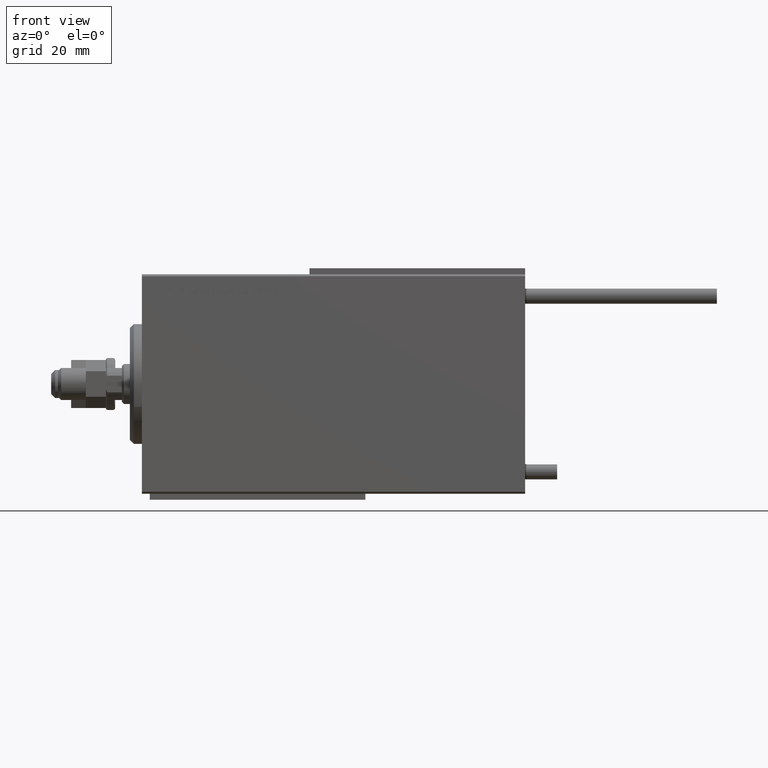
[diagram: clean part render]
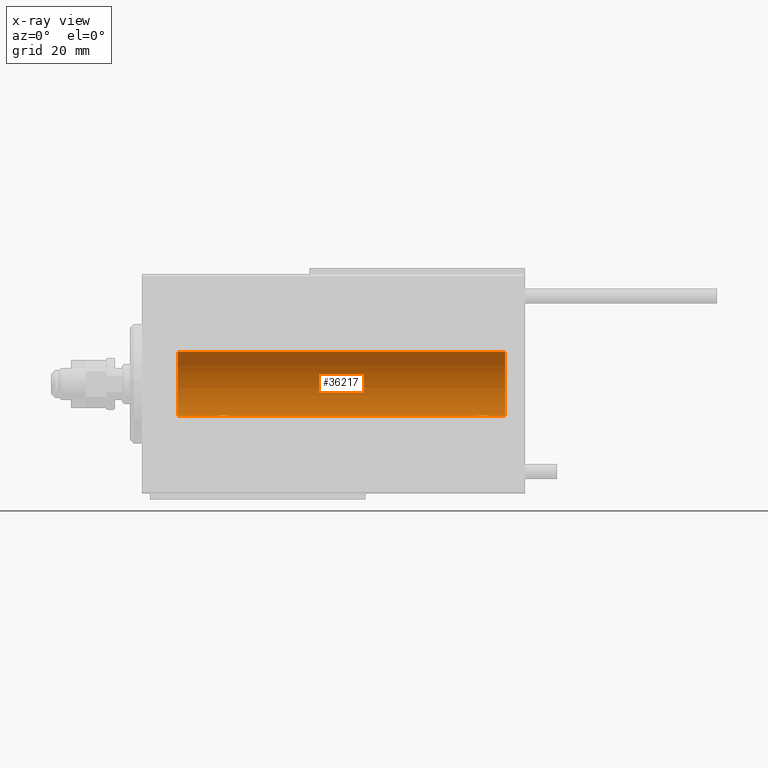
[diagram: x-ray — body ghosted, one internal face saturated and labeled with its STEP entity id]
A machine part, front view, then the same camera in x-ray: the body is ghosted and one INTERNAL B-rep face — a face not visible from any outside direction — is saturated and labeled: STEP entity #36217.
In plain terms, the highlighted cylindrical surface (edge-blend (fillet) strip) has radius 8 mm, axis along (-1, -0, -0).
Its self-contained STEP definition (entity closure, byte-faithful):
#160 = CARTESIAN_POINT ( 'NONE',  ( 84.25000000000001421, -1.007472265424530393E-14, -7.999999999999998224 ) ) ;
#597 = ORIENTED_EDGE ( 'NONE', *, *, #43658, .F. ) ;
#3413 = CARTESIAN_POINT ( 'NONE',  ( 85.90257413385910468, 1.186236229830381239, -7.911627449023369785 ) ) ;
#3460 = CARTESIAN_POINT ( 'NONE',  ( 21.59204967621043991, 0.6298709050361920303, -7.976604806854521001 ) ) ;
#4107 = DIRECTION ( 'NONE',  ( 0.000000000000000000, 0.000000000000000000, 1.000000000000000000 ) ) ;
#4166 = CARTESIAN_POINT ( 'NONE',  ( 84.40826977845306089, 0.6304521543648567983, -7.976560245937302618 ) ) ;
#5078 = DIRECTION ( 'NONE',  ( -1.000000000000000000, -0.000000000000000000, -0.000000000000000000 ) ) ;
#5446 = CARTESIAN_POINT ( 'NONE',  ( 86.75000000000002842, 9.797173987969553159E-16, -7.999999999999998224 ) ) ;
#6833 = EDGE_CURVE ( 'NONE', #23803, #44172, #23744, .T. ) ;
#7525 = CARTESIAN_POINT ( 'NONE',  ( 85.58119849493557751, 1.250030652953397992, -7.901735465557269578 ) ) ;
#8340 = VECTOR ( 'NONE', #48915, 1000.000000000000000 ) ;
#8493 = ORIENTED_EDGE ( 'NONE', *, *, #48108, .T. ) ;
#8539 = CARTESIAN_POINT ( 'NONE',  ( 86.70976650520090345, 0.3250523954932707515, -7.993796610540219838 ) ) ;
#9121 = VERTEX_POINT ( 'NONE', #19791 ) ;
#9866 = CYLINDRICAL_SURFACE ( 'NONE', #28202, 7.999999999999998224 ) ;
#10468 = VERTEX_POINT ( 'NONE', #10490 ) ;
#10490 = CARTESIAN_POINT ( 'NONE',  ( 91.00000000000000000, 9.797174393178823685E-16, -7.999999999999998224 ) ) ;
#10883 = CARTESIAN_POINT ( 'NONE',  ( 91.00000000000000000, 0.000000000000000000, 0.000000000000000000 ) ) ;
#11200 = CARTESIAN_POINT ( 'NONE',  ( 20.17150130922778573, 1.217000984963200860, -7.907141142849008375 ) ) ;
#11395 = CARTESIAN_POINT ( 'NONE',  ( 85.33619145091236646, 1.249938428426567549, -7.901750054830718462 ) ) ;
#11438 = AXIS2_PLACEMENT_3D ( 'NONE', #19489, #31090, #15158 ) ;
#11440 = CARTESIAN_POINT ( 'NONE',  ( 20.90257413385907270, 1.186236229830388345, -7.911627449023368008 ) ) ;
#11585 = CARTESIAN_POINT ( 'NONE',  ( 9.000000000000007105, 0.000000000000000000, 0.000000000000000000 ) ) ;
#11810 = LINE ( 'NONE', #23114, #14213 ) ;
#12896 = CARTESIAN_POINT ( 'NONE',  ( 9.000000000000007105, 9.797174393178823685E-16, -7.999999999999998224 ) ) ;
#13494 = VERTEX_POINT ( 'NONE', #12896 ) ;
#13660 = EDGE_CURVE ( 'NONE', #26595, #9121, #11810, .T. ) ;
#13779 = LINE ( 'NONE', #17621, #46414 ) ;
#13981 = DIRECTION ( 'NONE',  ( -1.000000000000000000, -0.000000000000000000, -0.000000000000000000 ) ) ;
#14213 = VECTOR ( 'NONE', #15170, 1000.000000000000000 ) ;
#14560 = CARTESIAN_POINT ( 'NONE',  ( 21.70976650520091411, 0.3250523954932730830, -7.993796610540221614 ) ) ;
#14806 = CARTESIAN_POINT ( 'NONE',  ( 21.75000000000000355, 9.797173987965608855E-16, -7.999999999999998224 ) ) ;
#15012 = CARTESIAN_POINT ( 'NONE',  ( 85.66417091690313157, 1.241868426634436862, -7.903038949453011774 ) ) ;
#15056 = CARTESIAN_POINT ( 'NONE',  ( 19.25000000000000711, -6.253246997522681077E-15, -7.999999999999998224 ) ) ;
#15158 = DIRECTION ( 'NONE',  ( 0.000000000000000000, 0.000000000000000000, 1.000000000000000000 ) ) ;
#15168 = CIRCLE ( 'NONE', #31016, 7.999999999999998224 ) ;
#15170 = DIRECTION ( 'NONE',  ( -1.000000000000000000, -0.000000000000000000, -0.000000000000000000 ) ) ;
#15262 = CARTESIAN_POINT ( 'NONE',  ( 86.26739091610632215, 1.000368629246204177, -7.938072339095200824 ) ) ;
#15304 = CARTESIAN_POINT ( 'NONE',  ( 21.74181525892405986, 0.1645871186493928773, -7.998709545350109806 ) ) ;
#15328 = VERTEX_POINT ( 'NONE', #38969 ) ;
#15893 = CARTESIAN_POINT ( 'NONE',  ( 91.00000000000000000, 9.797174393178823685E-16, -7.999999999999998224 ) ) ;
#16008 = CARTESIAN_POINT ( 'NONE',  ( 84.73146701955097626, 0.9991832710565793363, -7.938201675418737224 ) ) ;
#16104 = ORIENTED_EDGE ( 'NONE', *, *, #13660, .T. ) ;
#17621 = CARTESIAN_POINT ( 'NONE',  ( 91.00000000000000000, 9.797174393178823685E-16, -7.999999999999998224 ) ) ;
#17826 = FACE_OUTER_BOUND ( 'NONE', #36498, .T. ) ;
#18391 = CARTESIAN_POINT ( 'NONE',  ( 20.33619145091235936, 1.249938428426572656, -7.901750054830717573 ) ) ;
#18642 = CARTESIAN_POINT ( 'NONE',  ( 19.73146701955095494, 0.9991832710565806686, -7.938201675418735448 ) ) ;
#19489 = CARTESIAN_POINT ( 'NONE',  ( 91.00000000000000000, 0.000000000000000000, 0.000000000000000000 ) ) ;
#19791 = CARTESIAN_POINT ( 'NONE',  ( 9.000000000000007105, 0.000000000000000000, 7.999999999999998224 ) ) ;
#20044 = ORIENTED_EDGE ( 'NONE', *, *, #23582, .F. ) ;
#21003 = B_SPLINE_CURVE_WITH_KNOTS ( 'NONE', 3,
 ( #15056, #30739, #38209, #23253, #50758, #18642, #34340, #11200, #18391, #50004, #46663, #42560, #11440, #26619, #50506, #34099, #3460, #34849, #14560, #15304, #30997, #14806 ),
 .UNSPECIFIED., .F., .F.,
 ( 4, 2, 2, 2, 2, 2, 2, 2, 2, 2, 4 ),
 ( 4.384776375612755932E-19, 0.0004892585179631271522, 0.0009785170359262538708, 0.001467775553889380698, 0.001957034071852507308, 0.002201663330834065842, 0.002446292589815623510, 0.002935551107778730170, 0.003424809625741835964, 0.003669438884723391463, 0.003914068143704946962 ),
 .UNSPECIFIED. ) ;
#21320 = CARTESIAN_POINT ( 'NONE',  ( 86.75000000000002842, 9.797173987969553159E-16, -7.999999999999998224 ) ) ;
#23114 = CARTESIAN_POINT ( 'NONE',  ( 91.00000000000000000, 0.000000000000000000, 7.999999999999998224 ) ) ;
#23207 = CARTESIAN_POINT ( 'NONE',  ( 86.59204967621045057, 0.6298709050361919193, -7.976604806854521001 ) ) ;
#23253 = CARTESIAN_POINT ( 'NONE',  ( 19.40826977845302537, 0.6304521543648575754, -7.976560245937306171 ) ) ;
#23582 = EDGE_CURVE ( 'NONE', #26595, #10468, #31142, .T. ) ;
#23631 = CARTESIAN_POINT ( 'NONE',  ( 19.25000000000000711, -6.253246997522681077E-15, -7.999999999999998224 ) ) ;
#23707 = CARTESIAN_POINT ( 'NONE',  ( 84.25000000000001421, 0.1654536524217925242, -7.999999999999998224 ) ) ;
#23744 = B_SPLINE_CURVE_WITH_KNOTS ( 'NONE', 3,
 ( #30947, #23707, #39415, #4166, #38659, #16008, #34545, #50209, #11395, #7525, #15012, #42772, #3413, #30690, #15262, #34800, #23207, #38912, #8539, #31711, #44032, #5446 ),
 .UNSPECIFIED., .F., .F.,
 ( 4, 2, 2, 2, 2, 2, 2, 2, 2, 2, 4 ),
 ( 3.241390096745476763E-19, 0.0004892585179631255259, 0.0009785170359262506182, 0.001467775553889376144, 0.001957034071852501670, 0.002201663330834043291, 0.002446292589815584912, 0.002935551107778707185, 0.003424809625741829459, 0.003669438884723391029, 0.003914068143704951298 ),
 .UNSPECIFIED. ) ;
#23803 = VERTEX_POINT ( 'NONE', #160 ) ;
#23976 = ORIENTED_EDGE ( 'NONE', *, *, #43226, .T. ) ;
#26595 = VERTEX_POINT ( 'NONE', #40040 ) ;
#26619 = CARTESIAN_POINT ( 'NONE',  ( 21.12982270639374605, 1.092113850918997153, -7.925358570881165576 ) ) ;
#27537 = VERTEX_POINT ( 'NONE', #23631 ) ;
#28202 = AXIS2_PLACEMENT_3D ( 'NONE', #10883, #13981, #49452 ) ;
#28494 = LINE ( 'NONE', #15893, #49797 ) ;
#30690 = CARTESIAN_POINT ( 'NONE',  ( 86.12982270639373894, 1.092113850918989604, -7.925358570881167353 ) ) ;
#30739 = CARTESIAN_POINT ( 'NONE',  ( 19.25000000000000711, 0.1654536524217966875, -8.000000000000000000 ) ) ;
#30947 = CARTESIAN_POINT ( 'NONE',  ( 84.25000000000001421, -1.007472265424530393E-14, -7.999999999999998224 ) ) ;
#30997 = CARTESIAN_POINT ( 'NONE',  ( 21.75000000000000000, 0.08164616652084619175, -7.999999999999998224 ) ) ;
#31016 = AXIS2_PLACEMENT_3D ( 'NONE', #11585, #31392, #4107 ) ;
#31090 = DIRECTION ( 'NONE',  ( -1.000000000000000000, 0.000000000000000000, 0.000000000000000000 ) ) ;
#31142 = CIRCLE ( 'NONE', #11438, 7.999999999999998224 ) ;
#31392 = DIRECTION ( 'NONE',  ( -1.000000000000000000, 0.000000000000000000, 0.000000000000000000 ) ) ;
#31437 = EDGE_CURVE ( 'NONE', #10468, #44172, #33500, .T. ) ;
#31711 = CARTESIAN_POINT ( 'NONE',  ( 86.74181525892410605, 0.1645871186493908234, -7.998709545350108918 ) ) ;
#33500 = LINE ( 'NONE', #45052, #8340 ) ;
#34099 = CARTESIAN_POINT ( 'NONE',  ( 21.50031982237068107, 0.7674545364220053401, -7.963965305651049320 ) ) ;
#34340 = CARTESIAN_POINT ( 'NONE',  ( 19.87074834296262438, 1.092266057037466487, -7.925334523600932712 ) ) ;
#34545 = CARTESIAN_POINT ( 'NONE',  ( 84.87074834296265635, 1.092266057037465377, -7.925334523600930936 ) ) ;
#34800 = CARTESIAN_POINT ( 'NONE',  ( 86.50031982237068462, 0.7674545364220070054, -7.963965305651045767 ) ) ;
#34849 = CARTESIAN_POINT ( 'NONE',  ( 21.68608944587722576, 0.4029817482954558550, -7.990203133273719338 ) ) ;
#36217 = ADVANCED_FACE ( 'NONE', ( #17826 ), #9866, .F. ) ;
#36498 = EDGE_LOOP ( 'NONE', ( #43379, #20044, #16104, #23976, #49157, #8493, #597, #36589 ) ) ;
#36589 = ORIENTED_EDGE ( 'NONE', *, *, #6833, .T. ) ;
#38209 = CARTESIAN_POINT ( 'NONE',  ( 19.28266791658456825, 0.3277916934117463543, -7.994719249713585718 ) ) ;
#38659 = CARTESIAN_POINT ( 'NONE',  ( 84.50115498801912395, 0.7689725568822807222, -7.963798983873345172 ) ) ;
#38912 = CARTESIAN_POINT ( 'NONE',  ( 86.68608944587721510, 0.4029817482954567986, -7.990203133273721114 ) ) ;
#38969 = CARTESIAN_POINT ( 'NONE',  ( 21.75000000000000355, 9.797173987965608855E-16, -7.999999999999998224 ) ) ;
#39415 = CARTESIAN_POINT ( 'NONE',  ( 84.28266791658457180, 0.3277916934117453551, -7.994719249713585718 ) ) ;
#39825 = EDGE_CURVE ( 'NONE', #27537, #13494, #13779, .T. ) ;
#40040 = CARTESIAN_POINT ( 'NONE',  ( 91.00000000000000000, 0.000000000000000000, 7.999999999999998224 ) ) ;
#42560 = CARTESIAN_POINT ( 'NONE',  ( 20.82459038316880395, 1.209888574283866758, -7.907997942808293601 ) ) ;
#42772 = CARTESIAN_POINT ( 'NONE',  ( 85.82459038316882527, 1.209888574283861207, -7.907997942808298042 ) ) ;
#43226 = EDGE_CURVE ( 'NONE', #9121, #13494, #15168, .T. ) ;
#43379 = ORIENTED_EDGE ( 'NONE', *, *, #31437, .F. ) ;
#43658 = EDGE_CURVE ( 'NONE', #23803, #15328, #28494, .T. ) ;
#44032 = CARTESIAN_POINT ( 'NONE',  ( 86.75000000000002842, 0.08164616652084659421, -7.999999999999998224 ) ) ;
#44172 = VERTEX_POINT ( 'NONE', #21320 ) ;
#45052 = CARTESIAN_POINT ( 'NONE',  ( 91.00000000000000000, 9.797174393178823685E-16, -7.999999999999998224 ) ) ;
#46414 = VECTOR ( 'NONE', #47982, 1000.000000000000000 ) ;
#46663 = CARTESIAN_POINT ( 'NONE',  ( 20.66417091690312091, 1.241868426634441747, -7.903038949453011774 ) ) ;
#47982 = DIRECTION ( 'NONE',  ( -1.000000000000000000, -0.000000000000000000, -0.000000000000000000 ) ) ;
#48108 = EDGE_CURVE ( 'NONE', #27537, #15328, #21003, .T. ) ;
#48915 = DIRECTION ( 'NONE',  ( -1.000000000000000000, -0.000000000000000000, -0.000000000000000000 ) ) ;
#49157 = ORIENTED_EDGE ( 'NONE', *, *, #39825, .F. ) ;
#49452 = DIRECTION ( 'NONE',  ( 0.000000000000000000, 0.000000000000000000, 1.000000000000000000 ) ) ;
#49797 = VECTOR ( 'NONE', #5078, 1000.000000000000000 ) ;
#50004 = CARTESIAN_POINT ( 'NONE',  ( 20.58119849493555620, 1.250030652953401988, -7.901735465557267801 ) ) ;
#50209 = CARTESIAN_POINT ( 'NONE',  ( 85.17150130922780704, 1.217000984963198640, -7.907141142849008375 ) ) ;
#50506 = CARTESIAN_POINT ( 'NONE',  ( 21.26739091610630084, 1.000368629246204399, -7.938072339095202601 ) ) ;
#50758 = CARTESIAN_POINT ( 'NONE',  ( 19.50115498801909197, 0.7689725568822818325, -7.963798983873345172 ) ) ;